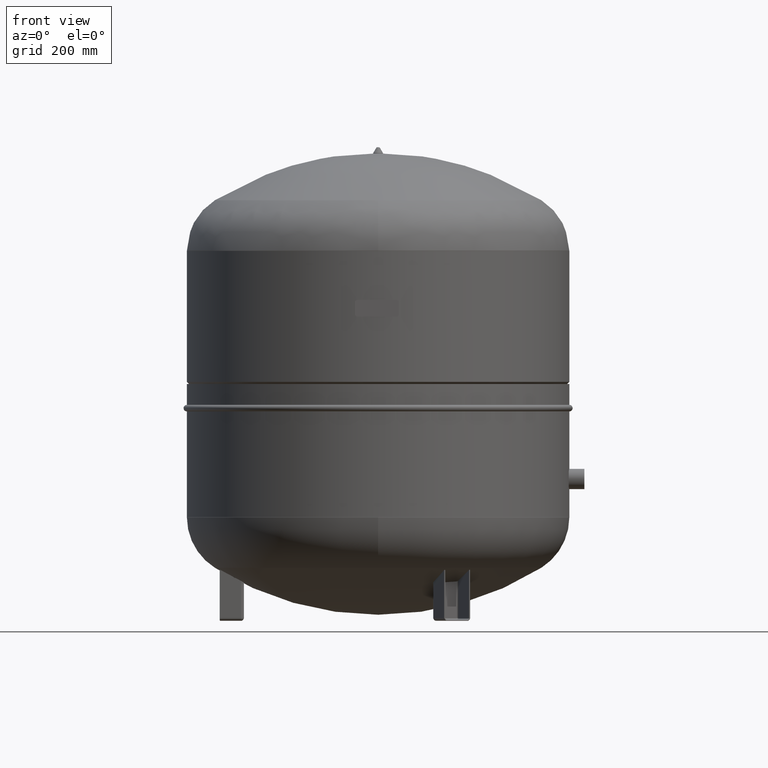
[diagram: clean part render]
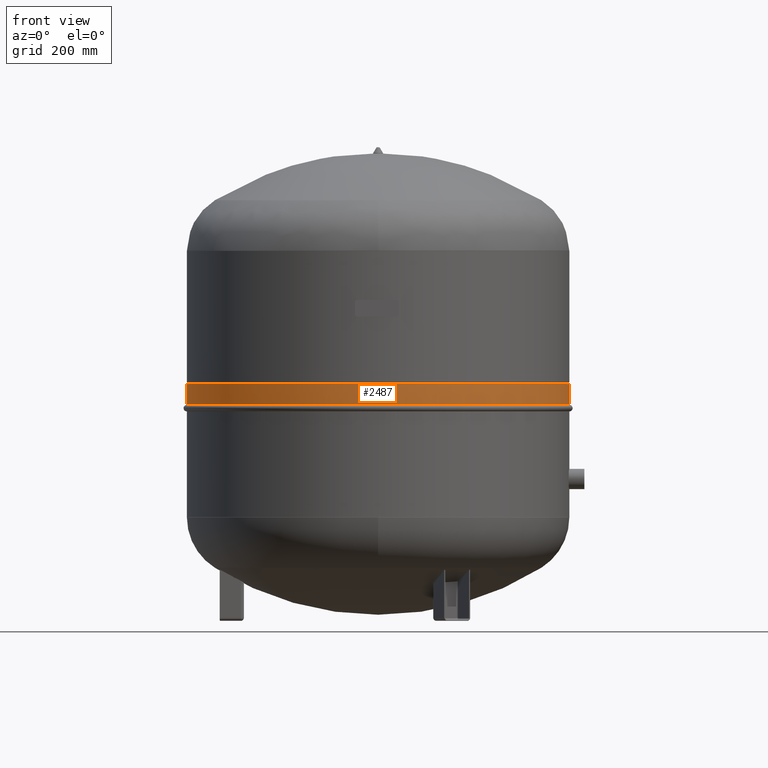
[diagram: same view with one face highlighted and labeled with its STEP entity id]
A machine part, front view. The second image highlights one B-rep face of the part: STEP entity #2487.
In plain terms, the highlighted cylindrical surface (bore or boss wall) has radius 317.007 mm, axis along (0, 0, 1).
Its self-contained STEP definition (entity closure, byte-faithful):
#2456=CARTESIAN_POINT('',(317.006991890022050,0.0,357.950004485004230));
#2457=VERTEX_POINT('',#2456);
#2458=CARTESIAN_POINT('',(-2.675495E-015,0.0,357.950004485004290));
#2459=DIRECTION('',(0.0,0.0,1.0));
#2460=DIRECTION('',(1.0,0.0,0.0));
#2461=AXIS2_PLACEMENT_3D('',#2458,#2459,#2460);
#2462=CIRCLE('',#2461,317.006991890022050);
#2463=EDGE_CURVE('',#2457,#2457,#2462,.T.);
#2468=CARTESIAN_POINT('',(-1.337747E-015,0.0,375.225002242502170));
#2469=DIRECTION('',(7.743835E-017,0.0,1.0));
#2470=DIRECTION('',(1.0,0.0,0.0));
#2471=AXIS2_PLACEMENT_3D('',#2468,#2469,#2470);
#2472=CYLINDRICAL_SURFACE('',#2471,317.006991890022050);
#2473=CARTESIAN_POINT('',(317.006991890022050,0.0,392.500000000000000));
#2474=VERTEX_POINT('',#2473);
#2475=CARTESIAN_POINT('',(1.972152E-030,0.0,392.500000000000060));
#2476=DIRECTION('',(0.0,0.0,1.0));
#2477=DIRECTION('',(1.0,0.0,0.0));
#2478=AXIS2_PLACEMENT_3D('',#2475,#2476,#2477);
#2479=CIRCLE('',#2478,317.006991890022050);
#2480=EDGE_CURVE('',#2474,#2474,#2479,.T.);
#2481=ORIENTED_EDGE('',*,*,#2480,.F.);
#2482=EDGE_LOOP('',(#2481));
#2483=FACE_OUTER_BOUND('',#2482,.T.);
#2484=ORIENTED_EDGE('',*,*,#2463,.T.);
#2485=EDGE_LOOP('',(#2484));
#2486=FACE_BOUND('',#2485,.T.);
#2487=ADVANCED_FACE('',(#2483,#2486),#2472,.T.);